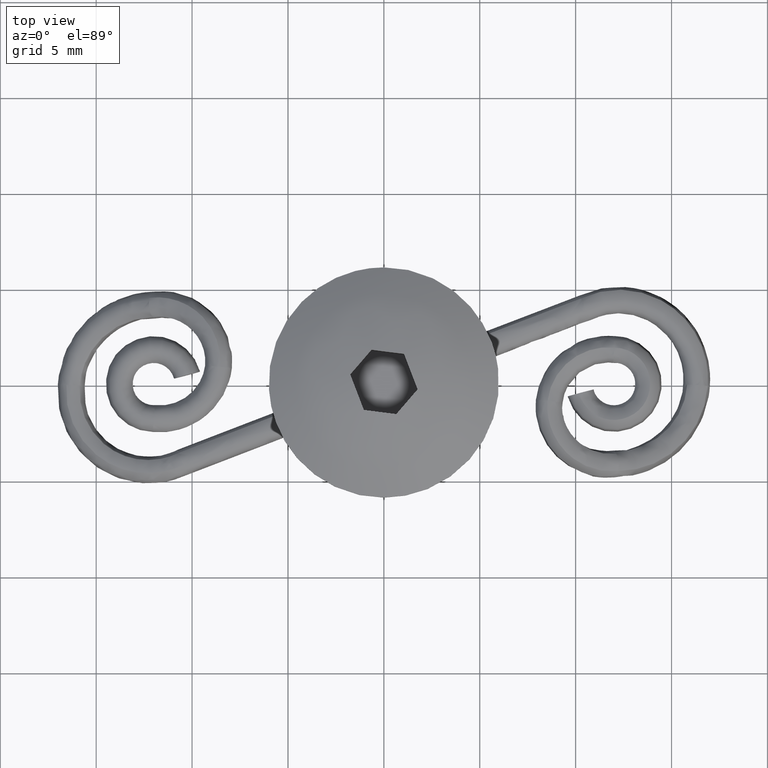
[diagram: clean part render]
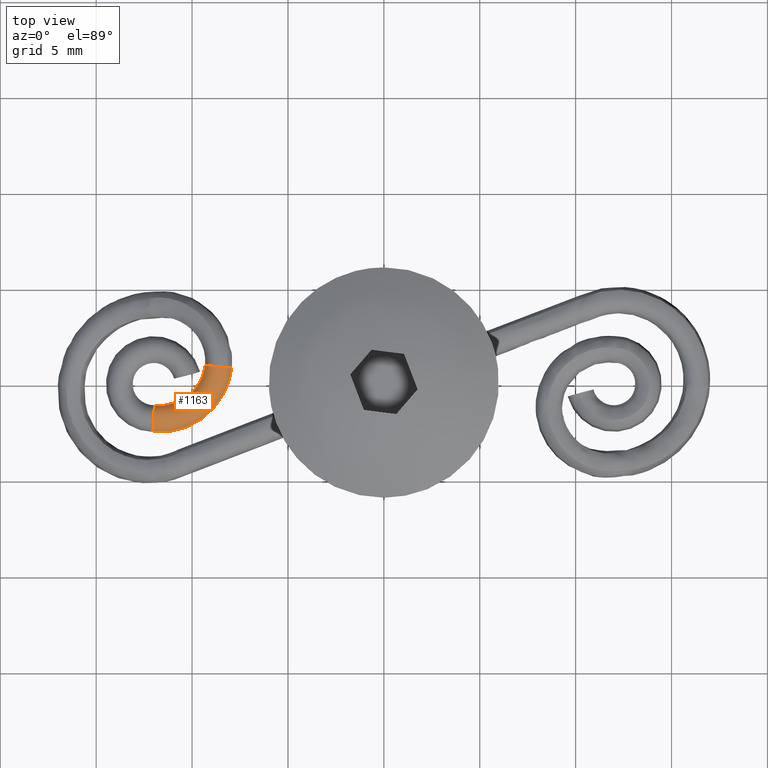
[diagram: same view with one face highlighted and labeled with its STEP entity id]
A machine part, top view. The second image highlights one B-rep face of the part: STEP entity #1163.
In plain terms, the highlighted face is a freeform B-spline surface patch.
Its self-contained STEP definition (entity closure, byte-faithful):
#250=CARTESIAN_POINT('',(-11.963323363197080,-1.099998881690773,2.499996992649442));
#251=VERTEX_POINT('',#250);
#476=CARTESIAN_POINT('',(-12.038346190221031,-2.493925409635368,2.587655184302351));
#477=VERTEX_POINT('',#476);
#493=CARTESIAN_POINT('',(-12.000079040220800,-1.768158136769930,3.199243034718020));
#494=VERTEX_POINT('',#493);
#495=CARTESIAN_POINT('',(-12.000079040220800,-1.768158136769930,3.199243034718020));
#496=CARTESIAN_POINT('',(-12.001272626413821,-1.790897682059978,3.200320938860493));
#497=CARTESIAN_POINT('',(-12.002488575140809,-1.814066732276463,3.200237591774363));
#498=CARTESIAN_POINT('',(-12.004891188975799,-1.859729151580189,3.197730264094322));
#499=CARTESIAN_POINT('',(-12.007279907051981,-1.905047182377431,3.192933544912149));
#500=CARTESIAN_POINT('',(-12.009642923827130,-1.949702865000036,3.183734092379550));
#501=CARTESIAN_POINT('',(-12.011993118453290,-1.994028436650135,3.172340335398020));
#502=CARTESIAN_POINT('',(-12.013168004455579,-2.016142507817890,3.165500605984241));
#503=CARTESIAN_POINT('',(-12.016618264622350,-2.080964709776568,3.141964642209588));
#504=CARTESIAN_POINT('',(-12.018818198462039,-2.122133512778051,3.122368110425676));
#505=CARTESIAN_POINT('',(-12.023010317922500,-2.200424812107539,3.075449524786208));
#506=CARTESIAN_POINT('',(-12.025020613069170,-2.237884170081830,3.047750664953330));
#507=CARTESIAN_POINT('',(-12.028642572418351,-2.305462873914813,2.986257650941378));
#508=CARTESIAN_POINT('',(-12.030266467524250,-2.335819672980281,2.952345875812342));
#509=CARTESIAN_POINT('',(-12.032420103366301,-2.376372034914411,2.896882856281571));
#510=CARTESIAN_POINT('',(-12.033094013838671,-2.389116702322386,2.877514390273013));
#511=CARTESIAN_POINT('',(-12.034322408755999,-2.412492564025842,2.837910009537292));
#512=CARTESIAN_POINT('',(-12.034878376131010,-2.423150881579001,2.817662363442143));
#513=CARTESIAN_POINT('',(-12.036375186802070,-2.452135678172803,2.755625709139314));
#514=CARTESIAN_POINT('',(-12.037147224716691,-2.467513715059053,2.712547160416589));
#515=CARTESIAN_POINT('',(-12.037991379921960,-2.485385651153912,2.641132206027665));
#516=CARTESIAN_POINT('',(-12.038214491344430,-2.490449081764889,2.614451033357957));
#517=CARTESIAN_POINT('',(-12.038346190221031,-2.493925409635368,2.587655184302351));
#518=B_SPLINE_CURVE_WITH_KNOTS('',3,(#495,#496,#497,#498,#499,#500,#501,#502,#503,#504,#505,#506,#507,#508,#509,#510,#511,#512,#513,#514,#515,#516,#517),.UNSPECIFIED.,.F.,.U.,(4,2,1,2,2,2,2,2,2,2,2,4),(0.0,0.031250000000000,0.062500000000000,0.093750000000000,0.125000000000000,0.187499999999999,0.249999999999999,0.312499999999998,0.343749999999998,0.374999999999998,0.437499999999997,0.474522926991861),.UNSPECIFIED.);
#519=EDGE_CURVE('',#494,#477,#518,.T.);
#521=CARTESIAN_POINT('',(-12.000079040220800,-1.768158136769930,3.199243034718020));
#522=CARTESIAN_POINT('',(-11.998883485838370,-1.745400169768971,3.198164252283349));
#523=CARTESIAN_POINT('',(-11.997668038123980,-1.722331437520763,3.195897781657603));
#524=CARTESIAN_POINT('',(-11.995277603724400,-1.677060083689816,3.189166497083681));
#525=CARTESIAN_POINT('',(-11.992910230831439,-1.632330331395794,3.180239322476791));
#526=CARTESIAN_POINT('',(-11.990587470676751,-1.588648675728124,3.167062708042457));
#527=CARTESIAN_POINT('',(-11.988287102148570,-1.545493230454730,3.151752609129946));
#528=CARTESIAN_POINT('',(-11.987142199154929,-1.524068347344241,3.142976557372391));
#529=CARTESIAN_POINT('',(-11.983790764935250,-1.461516859321028,3.113749640911289));
#530=CARTESIAN_POINT('',(-11.981673999365070,-1.422229598600072,3.090562785535104));
#531=CARTESIAN_POINT('',(-11.978675662237301,-1.366932157515992,3.050209429817195));
#532=CARTESIAN_POINT('',(-11.977705947469669,-1.349110647743594,3.035821189930962));
#533=CARTESIAN_POINT('',(-11.975829468275530,-1.314761644111095,3.005059919135107));
#534=CARTESIAN_POINT('',(-11.974928632406449,-1.298344036550227,2.988755088779456));
#535=CARTESIAN_POINT('',(-11.972382280899749,-1.252159113351410,2.937952789485176));
#536=CARTESIAN_POINT('',(-11.970870363953329,-1.225041591048081,2.901307627882257));
#537=CARTESIAN_POINT('',(-11.968869490642060,-1.189648280999968,2.842345086227310));
#538=CARTESIAN_POINT('',(-11.968244525531290,-1.178688880240876,2.821903804429570));
#539=CARTESIAN_POINT('',(-11.967105790679430,-1.158924397682954,2.780331420889251));
#540=CARTESIAN_POINT('',(-11.966591078605781,-1.150101335155855,2.759200327528118));
#541=CARTESIAN_POINT('',(-11.965207055211170,-1.126735194640523,2.694796598856490));
#542=CARTESIAN_POINT('',(-11.964495750755880,-1.115254360498953,2.650526801765565));
#543=CARTESIAN_POINT('',(-11.963638968567190,-1.102717910697866,2.569868285537501));
#544=CARTESIAN_POINT('',(-11.963409922652620,-1.100000838204458,2.534890031295114));
#545=CARTESIAN_POINT('',(-11.963323363197080,-1.099998881690773,2.499996992649442));
#546=B_SPLINE_CURVE_WITH_KNOTS('',3,(#521,#522,#523,#524,#525,#526,#527,#528,#529,#530,#531,#532,#533,#534,#535,#536,#537,#538,#539,#540,#541,#542,#543,#544,#545),.UNSPECIFIED.,.F.,.U.,(4,2,1,2,2,2,2,2,2,2,2,2,4),(0.0,0.031250000000000,0.062500000000001,0.093750000000001,0.125000000000001,0.187500000000002,0.218750000000002,0.250000000000003,0.312500000000003,0.343750000000003,0.375000000000004,0.437500000000004,0.485320442725994),.UNSPECIFIED.);
#547=EDGE_CURVE('',#494,#251,#546,.T.);
#842=CARTESIAN_POINT('',(-9.317457103771167,0.976972045573484,2.495937809265032));
#843=VERTEX_POINT('',#842);
#844=CARTESIAN_POINT('',(-11.963323363197080,-1.099998881690773,2.499996992649442));
#845=CARTESIAN_POINT('',(-11.950570276467030,-1.101339075253854,2.500060364470430));
#846=CARTESIAN_POINT('',(-11.938312748588521,-1.102626955344416,2.500121272065677));
#847=CARTESIAN_POINT('',(-11.838450309022470,-1.113116293668375,2.500617465685225));
#848=CARTESIAN_POINT('',(-11.772450376649079,-1.116251568329412,2.500917660032655));
#849=CARTESIAN_POINT('',(-11.617787620460851,-1.117346589941895,2.501575447917567));
#850=CARTESIAN_POINT('',(-11.540467488713571,-1.114119324117758,2.501876714357288));
#851=CARTESIAN_POINT('',(-11.309546281903630,-1.093174381217226,2.502693853999263));
#852=CARTESIAN_POINT('',(-11.156980537684870,-1.064152152941870,2.503122781201558));
#853=CARTESIAN_POINT('',(-10.712126366766610,-0.933600193181526,2.504037881636282));
#854=CARTESIAN_POINT('',(-10.433371318270060,-0.788369272374421,2.504147895888611));
#855=CARTESIAN_POINT('',(-9.950844019043764,-0.402031164298950,2.503352381869993));
#856=CARTESIAN_POINT('',(-9.748158123818200,-0.161793773476908,2.502448644608320));
#857=CARTESIAN_POINT('',(-9.523466420951241,0.243729814328705,2.500429703770099));
#858=CARTESIAN_POINT('',(-9.461777117933959,0.386252055614699,2.499647547032524));
#859=CARTESIAN_POINT('',(-9.390831561772508,0.606998379269402,2.498332737637663));
#860=CARTESIAN_POINT('',(-9.370770797592456,0.681739657723608,2.497870925114893));
#861=CARTESIAN_POINT('',(-9.338591323895960,0.830218625052075,2.496921265672630));
#862=CARTESIAN_POINT('',(-9.327447010224569,0.893358720797965,2.496506755894990));
#863=CARTESIAN_POINT('',(-9.317457103771167,0.976972045573484,2.495937809265032));
#864=B_SPLINE_CURVE_WITH_KNOTS('',3,(#844,#845,#846,#847,#848,#849,#850,#851,#852,#853,#854,#855,#856,#857,#858,#859,#860,#861,#862,#863),.UNSPECIFIED.,.F.,.U.,(4,2,2,2,2,2,2,2,2,4),(-0.008108221760979,0.0,0.062500000000000,0.125000000000000,0.250000000000000,0.500000000000000,0.750000000000000,0.875000000000000,0.937500000000000,0.997786397705014),.UNSPECIFIED.);
#865=EDGE_CURVE('',#251,#843,#864,.T.);
#883=CARTESIAN_POINT('',(-7.930329045085673,0.832857397942087,2.580612550988521));
#884=VERTEX_POINT('',#883);
#932=CARTESIAN_POINT('',(-12.038346190221031,-2.493925409635368,2.587655184302351));
#933=CARTESIAN_POINT('',(-11.934790568106090,-2.503697055289922,2.588161725988711));
#934=CARTESIAN_POINT('',(-11.815530408506540,-2.510266147222740,2.588710862434023));
#935=CARTESIAN_POINT('',(-11.582664460754890,-2.511914468442463,2.589701431933551));
#936=CARTESIAN_POINT('',(-11.459986006278699,-2.506793783759029,2.590179528742736));
#937=CARTESIAN_POINT('',(-11.093599474987229,-2.473561270316171,2.591476331838912));
#938=CARTESIAN_POINT('',(-10.851534109834070,-2.427513286449360,2.592157096550723));
#939=CARTESIAN_POINT('',(-10.145715298757940,-2.220374258478811,2.593609696023941));
#940=CARTESIAN_POINT('',(-9.703434414684633,-1.989945563229683,2.593784730854362));
#941=CARTESIAN_POINT('',(-8.937842830129577,-1.376968058210705,2.592523509698643));
#942=CARTESIAN_POINT('',(-8.616255772297235,-0.995799297791218,2.591090093208884));
#943=CARTESIAN_POINT('',(-8.259753990807532,-0.352382181337199,2.587887446801667));
#944=CARTESIAN_POINT('',(-8.161876183055822,-0.126251731977463,2.586646666109933));
#945=CARTESIAN_POINT('',(-8.049312292768702,0.223991540325917,2.584560849110773));
#946=CARTESIAN_POINT('',(-8.017483438460781,0.342578464969159,2.583828219871429));
#947=CARTESIAN_POINT('',(-7.965506379714680,0.582407047311652,2.582294483015233));
#948=CARTESIAN_POINT('',(-7.944058617742148,0.714894061962326,2.581416679466036));
#949=CARTESIAN_POINT('',(-7.930877958519280,0.828140885867035,2.580644702492204));
#950=CARTESIAN_POINT('',(-7.930602315301991,0.830509286770116,2.580628557609369));
#951=CARTESIAN_POINT('',(-7.930329045085673,0.832857397942087,2.580612550988521));
#952=B_SPLINE_CURVE_WITH_KNOTS('',3,(#932,#933,#934,#935,#936,#937,#938,#939,#940,#941,#942,#943,#944,#945,#946,#947,#948,#949,#950,#951),.UNSPECIFIED.,.F.,.U.,(4,2,2,2,2,2,2,2,2,4),(0.006380930208049,0.062500000000000,0.125000000000000,0.250000000000000,0.500000000000000,0.750000000000000,0.875000000000000,0.937500000000000,1.0,1.001347476133205),.UNSPECIFIED.);
#953=EDGE_CURVE('',#477,#884,#952,.T.);
#958=CARTESIAN_POINT('',(-11.992900132966010,-1.096886867015952,2.489290341704628));
#959=CARTESIAN_POINT('',(-11.993518276739101,-1.093978305270897,2.676092718753370));
#960=CARTESIAN_POINT('',(-12.002591912328800,-1.169319837765747,2.862728131065637));
#961=CARTESIAN_POINT('',(-12.031979309138030,-1.429171650899022,3.124311226002768));
#962=CARTESIAN_POINT('',(-12.072010705755501,-1.792635094093233,3.275092135823166));
#963=CARTESIAN_POINT('',(-12.110544309024180,-2.156177362787182,3.124111228706414));
#964=CARTESIAN_POINT('',(-12.135209442583450,-2.395545990281665,2.883124942670573));
#965=CARTESIAN_POINT('',(-12.142132096888950,-2.466539804646790,2.732976462316147));
#966=CARTESIAN_POINT('',(-12.143287256315160,-2.484448642365881,2.576675470323598));
#967=CARTESIAN_POINT('',(-11.969491442103870,-1.099347364772375,2.489406685276800));
#968=CARTESIAN_POINT('',(-11.970108047657630,-1.096438964690841,2.676209069970508));
#969=CARTESIAN_POINT('',(-11.979258109763469,-1.171772464913934,2.862844102442186));
#970=CARTESIAN_POINT('',(-12.008906318934560,-1.431596867197639,3.124425901139134));
#971=CARTESIAN_POINT('',(-12.049300956750621,-1.795022134479789,3.275205005646959));
#972=CARTESIAN_POINT('',(-12.088195683158119,-2.158526449865787,3.124222303744415));
#973=CARTESIAN_POINT('',(-12.113097561945519,-2.397870195918105,2.883234841082303));
#974=CARTESIAN_POINT('',(-12.120089859303141,-2.468856690940127,2.733086014601177));
#975=CARTESIAN_POINT('',(-12.121261724782460,-2.486763772887151,2.576784939579371));
#976=CARTESIAN_POINT('',(-11.946924671907169,-1.101718890772257,2.489518840932090));
#977=CARTESIAN_POINT('',(-11.947541606767320,-1.098810456381469,2.676321223991335));
#978=CARTESIAN_POINT('',(-11.956675307284611,-1.174145661438516,2.862956337672621));
#979=CARTESIAN_POINT('',(-11.986267681062101,-1.433975881614504,3.124538413504624));
#980=CARTESIAN_POINT('',(-12.026584555250491,-1.797409251645723,3.275317903986728));
#981=CARTESIAN_POINT('',(-12.065401971469511,-2.160921622528022,3.124335585807804));
#982=CARTESIAN_POINT('',(-12.090253167217410,-2.400270649602652,2.883348374707331));
#983=CARTESIAN_POINT('',(-12.097230555207590,-2.471258698135023,2.733199622227776));
#984=CARTESIAN_POINT('',(-12.098398844210969,-2.489166152737600,2.576898564957531));
#985=CARTESIAN_POINT('',(-11.838399156126361,-1.113118196479680,2.490058166358196));
#986=CARTESIAN_POINT('',(-11.839046980333309,-1.110206520535384,2.676860395932541));
#987=CARTESIAN_POINT('',(-11.846645942159681,-1.185702785394518,2.863503135541557));
#988=CARTESIAN_POINT('',(-11.871000882072851,-1.446082636515280,3.125111235537430));
#989=CARTESIAN_POINT('',(-11.904023425031520,-1.810281493979163,3.275926970652567));
#990=CARTESIAN_POINT('',(-11.935589043264001,-2.174554888639654,3.124980685763513));
#991=CARTESIAN_POINT('',(-11.955686102857751,-2.414402827891975,2.884017097378910));
#992=CARTESIAN_POINT('',(-11.961264972469550,-2.485537640779742,2.733875293964431));
#993=CARTESIAN_POINT('',(-11.962097783318850,-2.503480301341284,2.577575903643416));
#994=CARTESIAN_POINT('',(-11.772395340255549,-1.116235950090371,2.490358304433614));
#995=CARTESIAN_POINT('',(-11.773118834790770,-1.113318815429325,2.677160176146824));
#996=CARTESIAN_POINT('',(-11.776958112446330,-1.189086304370841,2.863820696159206));
#997=CARTESIAN_POINT('',(-11.788482791874900,-1.450391731778518,3.125489473378874));
#998=CARTESIAN_POINT('',(-11.803636246243320,-1.815879666929674,3.276389715482282));
#999=CARTESIAN_POINT('',(-11.817436970542900,-2.181434622428618,3.125527444819491));
#1000=CARTESIAN_POINT('',(-11.825887715022921,-2.422122727652611,2.884618934508713));
#1001=CARTESIAN_POINT('',(-11.828040602460749,-2.493504691067140,2.734493333342926));
#1002=CARTESIAN_POINT('',(-11.828051584874240,-2.511506638278805,2.578197829634749));
#1003=CARTESIAN_POINT('',(-11.463193134325040,-1.118516508215704,2.491674291598928));
#1004=CARTESIAN_POINT('',(-11.464118553986779,-1.115597885213838,2.678475303911226));
#1005=CARTESIAN_POINT('',(-11.457925170020729,-1.191439342242544,2.865178523452045));
#1006=CARTESIAN_POINT('',(-11.435212489097941,-1.452997191616489,3.126993016648064));
#1007=CARTESIAN_POINT('',(-11.402682544864319,-1.818836681964136,3.278096201758780));
#1008=CARTESIAN_POINT('',(-11.369077912504901,-2.184741142112149,3.127435690737822));
#1009=CARTESIAN_POINT('',(-11.346450637410371,-2.425658375414135,2.886659450078398));
#1010=CARTESIAN_POINT('',(-11.339461342114801,-2.497107740987274,2.736572758511735));
#1011=CARTESIAN_POINT('',(-11.337279287525140,-2.515125856452458,2.580286588479803));
#1012=CARTESIAN_POINT('',(-10.921357750206640,-1.042504007136738,2.493395855725802));
#1013=CARTESIAN_POINT('',(-10.922637016308350,-1.039635025972286,2.680195743780784));
#1014=CARTESIAN_POINT('',(-10.898862746315571,-1.113010060079921,2.866954822385649));
#1015=CARTESIAN_POINT('',(-10.816153710399711,-1.366151017976149,3.128959939652523));
#1016=CARTESIAN_POINT('',(-10.700065043283191,-1.720268050343933,3.280328612617313));
#1017=CARTESIAN_POINT('',(-10.583388919197260,-2.074518405073884,3.129932041381974));
#1018=CARTESIAN_POINT('',(-10.506301607847851,-2.307795435528522,2.889328834451141));
#1019=CARTESIAN_POINT('',(-10.483291870818590,-2.376997291752284,2.739293044001034));
#1020=CARTESIAN_POINT('',(-10.477266814840810,-2.394476271724818,2.583019084182322));
#1021=CARTESIAN_POINT('',(-10.433328074864971,-0.788385752994673,2.493590117558462));
#1022=CARTESIAN_POINT('',(-10.434926048915250,-0.785682725814723,2.680389878765084));
#1023=CARTESIAN_POINT('',(-10.395316739515390,-0.850812357682000,2.867155260134864));
#1024=CARTESIAN_POINT('',(-10.258569207708859,-1.075815137417982,3.129181886141301));
#1025=CARTESIAN_POINT('',(-10.067219507025669,-1.390743284445522,3.280580514966415));
#1026=CARTESIAN_POINT('',(-9.875721197056327,-1.706033263274415,3.130213724909535));
#1027=CARTESIAN_POINT('',(-9.749581932305508,-1.913768636997648,2.889630041929265));
#1028=CARTESIAN_POINT('',(-9.712142642709789,-1.975456935264061,2.739599994813108));
#1029=CARTESIAN_POINT('',(-9.702656209758477,-1.991133554168158,2.583327412707948));
#1030=CARTESIAN_POINT('',(-9.950859097763930,-0.402094161275148,2.492795383616052));
#1031=CARTESIAN_POINT('',(-9.952772147917724,-0.399643404125035,2.679595663841645));
#1032=CARTESIAN_POINT('',(-9.897508239084646,-0.452239015637262,2.866335258053807));
#1033=CARTESIAN_POINT('',(-9.707337979366566,-0.634468322096607,3.128273883053261));
#1034=CARTESIAN_POINT('',(-9.441584843838919,-0.889824569344989,3.279549950229086));
#1035=CARTESIAN_POINT('',(-9.176116946318219,-1.145890011225019,3.129061313168863));
#1036=CARTESIAN_POINT('',(-9.001484674994524,-1.314798942744914,2.888397749684573));
#1037=CARTESIAN_POINT('',(-8.949780257601244,-1.365065714082480,2.738344204216217));
#1038=CARTESIAN_POINT('',(-8.936871890181006,-1.378002523962397,2.582065985295973));
#1039=CARTESIAN_POINT('',(-9.596148354158320,0.018532600931664,2.491212940475357));
#1040=CARTESIAN_POINT('',(-9.598293047536558,0.020708665806517,2.678014254132469));
#1041=CARTESIAN_POINT('',(-9.531519904569601,-0.018238866569346,2.864702502518694));
#1042=CARTESIAN_POINT('',(-9.302073349038290,-0.153892874261327,3.126465905255977));
#1043=CARTESIAN_POINT('',(-8.981618938975739,-0.344382305531627,3.277497935126036));
#1044=CARTESIAN_POINT('',(-8.661768730965662,-0.535959169184415,3.126766683733236));
#1045=CARTESIAN_POINT('',(-8.451484486746944,-0.662590656682532,2.885944067059501));
#1046=CARTESIAN_POINT('',(-8.389292372634094,-0.700420724204292,2.735843733107967));
#1047=CARTESIAN_POINT('',(-8.373868205157329,-0.710374203398993,2.579554290510557));
#1048=CARTESIAN_POINT('',(-9.403464374637558,0.530617299042524,2.488281459240209));
#1049=CARTESIAN_POINT('',(-9.405734899047127,0.532458945368704,2.675084687318313));
#1050=CARTESIAN_POINT('',(-9.332709801117439,0.510127005894658,2.861677817812762));
#1051=CARTESIAN_POINT('',(-9.081927888133514,0.431175204248149,3.123116622178636));
#1052=CARTESIAN_POINT('',(-8.731759086602256,0.319656636211767,3.273696574156263));
#1053=CARTESIAN_POINT('',(-8.382367752812616,0.206590156997767,3.122515880930570));
#1054=CARTESIAN_POINT('',(-8.152716927968019,0.131428533771479,2.881398619026168));
#1055=CARTESIAN_POINT('',(-8.084827770964852,0.108739292918082,2.731211609648272));
#1056=CARTESIAN_POINT('',(-8.068036990895253,0.102417812286059,2.574901375249910));
#1057=CARTESIAN_POINT('',(-9.338058743199774,0.832834799527882,2.486348372946840));
#1058=CARTESIAN_POINT('',(-9.340371977734817,0.834479100757721,2.673152863307797));
#1059=CARTESIAN_POINT('',(-9.265224805363877,0.821952259800869,2.859683277314659));
#1060=CARTESIAN_POINT('',(-9.007201123209486,0.776461239100653,3.120908056019884));
#1061=CARTESIAN_POINT('',(-8.646946492997259,0.711544504329082,3.271189928038397));
#1062=CARTESIAN_POINT('',(-8.287528141619728,0.644808123173493,3.119712892954526));
#1063=CARTESIAN_POINT('',(-8.051303801521044,0.600019601189634,2.878401355154020));
#1064=CARTESIAN_POINT('',(-7.981480921795940,0.586265178146187,2.728157195874151));
#1065=CARTESIAN_POINT('',(-7.964226278406478,0.582086991639274,2.571833252292081));
#1066=CARTESIAN_POINT('',(-9.324865821697483,0.908232043199037,2.485852976785851));
#1067=CARTESIAN_POINT('',(-9.327192078055326,0.909789215713531,2.672658048969454));
#1068=CARTESIAN_POINT('',(-9.251397907122710,0.901591368822425,2.859159555129283));
#1069=CARTESIAN_POINT('',(-8.991166284509204,0.870873429868923,3.120285683204041));
#1070=CARTESIAN_POINT('',(-8.627836589592256,0.826531609144653,3.270430161529755));
#1071=CARTESIAN_POINT('',(-8.265361104486322,0.780250169731602,3.118816533894525));
#1072=CARTESIAN_POINT('',(-8.027132567763800,0.748871505315124,2.877415448702813));
#1073=CARTESIAN_POINT('',(-7.956720116058194,0.739061843562881,2.727144947376769));
#1074=CARTESIAN_POINT('',(-7.939324045592250,0.735829930815020,2.570814684834682));
#1075=CARTESIAN_POINT('',(-9.313050428394202,1.015273034246242,2.485120609891370));
#1076=CARTESIAN_POINT('',(-9.315378479545379,1.016811217114550,2.671925813267007));
#1077=CARTESIAN_POINT('',(-9.239495132293119,1.009556871726749,2.858420801152741));
#1078=CARTESIAN_POINT('',(-8.978959187542015,0.982058716540257,3.119524685030499));
#1079=CARTESIAN_POINT('',(-8.615205654099949,0.942201185239242,3.269638183195768));
#1080=CARTESIAN_POINT('',(-8.252308801932635,0.900377887358595,3.117993756045010));
#1081=CARTESIAN_POINT('',(-8.013804025279667,0.871921892861759,2.876572479296504));
#1082=CARTESIAN_POINT('',(-7.943310312430017,0.862971989320788,2.726296038245036));
#1083=CARTESIAN_POINT('',(-7.925894748974330,0.859946316334869,2.569964350874858));
#1084=CARTESIAN_POINT('',(-9.311130555359194,1.031430619628437,2.485010633875195));
#1085=CARTESIAN_POINT('',(-9.313458558033753,1.032969448253649,2.671815832736785));
#1086=CARTESIAN_POINT('',(-9.237577619288302,1.025683018386972,2.858311044903506));
#1087=CARTESIAN_POINT('',(-8.977049893785630,0.998075372030277,3.119415694160295));
#1088=CARTESIAN_POINT('',(-8.613307807538648,0.958065349092899,3.269530258291888));
#1089=CARTESIAN_POINT('',(-8.250422335819607,0.916090448755087,3.117886890891793));
#1090=CARTESIAN_POINT('',(-8.011925019965586,0.887535066668812,2.876466308894977));
#1091=CARTESIAN_POINT('',(-7.941433501850447,0.878555926403171,2.726190072217754));
#1092=CARTESIAN_POINT('',(-7.924018464870852,0.875523240079212,2.569858433873095));
#1093=B_SPLINE_SURFACE_WITH_KNOTS('',3,3,((#958,#967,#976,#985,#994,#1003,#1012,#1021,#1030,#1039,#1048,#1057,#1066,#1075,#1084),(#959,#968,#977,#986,#995,#1004,#1013,#1022,#1031,#1040,#1049,#1058,#1067,#1076,#1085),(#960,#969,#978,#987,#996,#1005,#1014,#1023,#1032,#1041,#1050,#1059,#1068,#1077,#1086),(#961,#970,#979,#988,#997,#1006,#1015,#1024,#1033,#1042,#1051,#1060,#1069,#1078,#1087),(#962,#971,#980,#989,#998,#1007,#1016,#1025,#1034,#1043,#1052,#1061,#1070,#1079,#1088),(#963,#972,#981,#990,#999,#1008,#1017,#1026,#1035,#1044,#1053,#1062,#1071,#1080,#1089),(#964,#973,#982,#991,#1000,#1009,#1018,#1027,#1036,#1045,#1054,#1063,#1072,#1081,#1090),(#965,#974,#983,#992,#1001,#1010,#1019,#1028,#1037,#1046,#1055,#1064,#1073,#1082,#1091),(#966,#975,#984,#993,#1002,#1011,#1020,#1029,#1038,#1047,#1056,#1065,#1074,#1083,#1092)),.UNSPECIFIED.,.F.,.F.,.U.,(4,2,1,2,4),(4,2,2,1,2,1,2,1,4),(0.0,0.560618628016203,1.110672459115921,1.660726290215639,2.133332560920016),(0.0,0.086444705595425,0.465999015815275,1.604661946474823,3.122879187354222,4.641096428233620,5.779759358893169,6.159313669113018,6.219797798131368),.UNSPECIFIED.);
#1094=ORIENTED_EDGE('',*,*,#519,.T.);
#1095=ORIENTED_EDGE('',*,*,#953,.T.);
#1096=CARTESIAN_POINT('',(-8.014541838433098,0.837051967370375,2.836035016356870));
#1097=VERTEX_POINT('',#1096);
#1098=CARTESIAN_POINT('',(-7.930329045085673,0.832857397942087,2.580612550988521));
#1099=CARTESIAN_POINT('',(-7.936047801639759,0.832669737094493,2.624905967409290));
#1100=CARTESIAN_POINT('',(-7.945912892957689,0.832927417008475,2.668116862491265));
#1101=CARTESIAN_POINT('',(-7.966811969768114,0.833956969936256,2.732036135878083));
#1102=CARTESIAN_POINT('',(-7.974970654541851,0.834420089796959,2.753495200862921));
#1103=CARTESIAN_POINT('',(-7.993454749803510,0.835578768684058,2.795847641785175));
#1104=CARTESIAN_POINT('',(-8.003469009377408,0.836259696140857,2.816085548040309));
#1105=CARTESIAN_POINT('',(-8.014541838433098,0.837051967370375,2.836035016356870));
#1106=B_SPLINE_CURVE_WITH_KNOTS('',3,(#1098,#1099,#1100,#1101,#1102,#1103,#1104,#1105),.UNSPECIFIED.,.F.,.U.,(4,2,2,4),(0.876843808299311,0.937500000000002,0.968750000000001,1.0),.UNSPECIFIED.);
#1107=EDGE_CURVE('',#884,#1097,#1106,.T.);
#1108=ORIENTED_EDGE('',*,*,#1107,.T.);
#1109=CARTESIAN_POINT('',(-8.533807151219545,0.884718017864596,3.188635315793955));
#1110=VERTEX_POINT('',#1109);
#1111=CARTESIAN_POINT('',(-8.533807151219545,0.884718017864596,3.188635315793955));
#1112=CARTESIAN_POINT('',(-8.499765424149093,0.881283460638455,3.184123489223138));
#1113=CARTESIAN_POINT('',(-8.466101934926961,0.877928567890645,3.177057401751177));
#1114=CARTESIAN_POINT('',(-8.410835969406113,0.872490121901326,3.161161893062606));
#1115=CARTESIAN_POINT('',(-8.388985831136271,0.870358839637059,3.153709228593679));
#1116=CARTESIAN_POINT('',(-8.346539982001756,0.866256595158644,3.136914936023618));
#1117=CARTESIAN_POINT('',(-8.325826106665199,0.864273911556440,3.127545063223857));
#1118=CARTESIAN_POINT('',(-8.265188842198187,0.858529031153181,3.096560643107222));
#1119=CARTESIAN_POINT('',(-8.226633111493527,0.854956729718030,3.072017693855726));
#1120=CARTESIAN_POINT('',(-8.154321316702392,0.848444353456788,3.015068870865828));
#1121=CARTESIAN_POINT('',(-8.121602601794171,0.845599087651689,2.983441829983559));
#1122=CARTESIAN_POINT('',(-8.062887072446637,0.840712426935382,2.914022312420392));
#1123=CARTESIAN_POINT('',(-8.036648632837256,0.838655635076679,2.875868124441699));
#1124=CARTESIAN_POINT('',(-8.014541838433098,0.837051967370375,2.836035016356870));
#1125=B_SPLINE_CURVE_WITH_KNOTS('',3,(#1111,#1112,#1113,#1114,#1115,#1116,#1117,#1118,#1119,#1120,#1121,#1122,#1123,#1124),.UNSPECIFIED.,.F.,.U.,(4,2,2,2,2,2,4),(0.702654327638010,0.750000000000000,0.781250000000000,0.812500000000000,0.875000000000000,0.937500000000000,1.0),.UNSPECIFIED.);
#1126=EDGE_CURVE('',#1110,#1097,#1125,.T.);
#1127=ORIENTED_EDGE('',*,*,#1126,.F.);
#1128=CARTESIAN_POINT('',(-9.317457103771167,0.976972045573484,2.495937809265032));
#1129=CARTESIAN_POINT('',(-9.317457745439024,0.976656438208911,2.514234791303704));
#1130=CARTESIAN_POINT('',(-9.316717176991313,0.976265844786832,2.532507421174207));
#1131=CARTESIAN_POINT('',(-9.313401129267012,0.975221703388425,2.573461763979423));
#1132=CARTESIAN_POINT('',(-9.310432068533007,0.974528322648786,2.596130545637857));
#1133=CARTESIAN_POINT('',(-9.302220998136978,0.972911341247731,2.641393426554101));
#1134=CARTESIAN_POINT('',(-9.296981915076655,0.971989564495286,2.663899041298427));
#1135=CARTESIAN_POINT('',(-9.278247405859380,0.968943173913048,2.729883740511708));
#1136=CARTESIAN_POINT('',(-9.261696130913300,0.966525406943501,2.772306098348523));
#1137=CARTESIAN_POINT('',(-9.230771219006487,0.962316732992538,2.833586243997098));
#1138=CARTESIAN_POINT('',(-9.219367265132078,0.960807090406808,2.853716466916793));
#1139=CARTESIAN_POINT('',(-9.194868796437243,0.957641659165107,2.892420333270694));
#1140=CARTESIAN_POINT('',(-9.181762595732568,0.955983802514838,2.911044998340242));
#1141=CARTESIAN_POINT('',(-9.139881259340013,0.950785008818449,2.964744065137630));
#1142=CARTESIAN_POINT('',(-9.108533669685810,0.947018441378071,2.997635335669962));
#1143=CARTESIAN_POINT('',(-9.038586892808450,0.938841798333169,3.057262988449249));
#1144=CARTESIAN_POINT('',(-9.000990131126583,0.934547780271921,3.083216597006219));
#1145=CARTESIAN_POINT('',(-8.941528622220169,0.927885223879872,3.116383267926262));
#1146=CARTESIAN_POINT('',(-8.921160812416595,0.925623456143032,3.126495057921279));
#1147=CARTESIAN_POINT('',(-8.879317071576558,0.921016874383920,3.144807772244476));
#1148=CARTESIAN_POINT('',(-8.857755776241596,0.918662974560096,3.153026836029734));
#1149=CARTESIAN_POINT('',(-8.792688841138540,0.911616912155156,3.174283635438742));
#1150=CARTESIAN_POINT('',(-8.748455686203098,0.906901156076308,3.184150298040246));
#1151=CARTESIAN_POINT('',(-8.658240403289318,0.897431927550002,3.195080311706075));
#1152=CARTESIAN_POINT('',(-8.611870175342988,0.892641839237283,3.195973030660338));
#1153=CARTESIAN_POINT('',(-8.555637998940661,0.886924835137663,3.191262031653203));
#1154=CARTESIAN_POINT('',(-8.544703199339146,0.885817345635775,3.190079515964357));
#1155=CARTESIAN_POINT('',(-8.533807151219545,0.884718017864596,3.188635315793955));
#1156=B_SPLINE_CURVE_WITH_KNOTS('',3,(#1128,#1129,#1130,#1131,#1132,#1133,#1134,#1135,#1136,#1137,#1138,#1139,#1140,#1141,#1142,#1143,#1144,#1145,#1146,#1147,#1148,#1149,#1150,#1151,#1152,#1153,#1154,#1155),.UNSPECIFIED.,.F.,.U.,(4,2,2,2,2,2,2,2,2,2,2,2,2,4),(0.162384843610974,0.187500000000000,0.218750000000001,0.250000000000001,0.312500000000001,0.343750000000001,0.375000000000001,0.437500000000001,0.500000000000001,0.531250000000001,0.562500000000001,0.625000000000001,0.687500000000001,0.702654327638011),.UNSPECIFIED.);
#1157=EDGE_CURVE('',#843,#1110,#1156,.T.);
#1158=ORIENTED_EDGE('',*,*,#1157,.F.);
#1159=ORIENTED_EDGE('',*,*,#865,.F.);
#1160=ORIENTED_EDGE('',*,*,#547,.F.);
#1161=EDGE_LOOP('',(#1094,#1095,#1108,#1127,#1158,#1159,#1160));
#1162=FACE_OUTER_BOUND('',#1161,.T.);
#1163=ADVANCED_FACE('',(#1162),#1093,.T.);